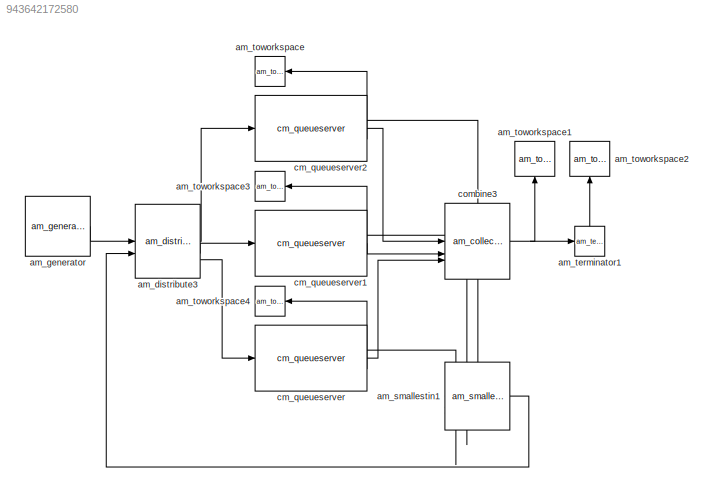
MODEL slx_943642172580
KIND model
CONFIG AbsTol = auto
CONFIG EnableMultiTasking = off
CONFIG FixedStep = auto
CONFIG MaxStep = auto
CONFIG MinStep = auto
CONFIG RelTol = 1e-3
CONFIG SampleTimeConstraint = Unconstrained
CONFIG SolverName = VariableStepAuto
CONFIG StartTime = 0.0
CONFIG StopTime = 10.0
BLOCK [Reference] am_distribute3  REF=StdLib/am_distribute3
  SourceBlock = StdLib/am_distribute3
  SourceProductName = Routing
  SourceType = Distribute3
BLOCK [Reference] am_generator  REF=StdLib/am_generator
  SourceBlock = StdLib/am_generator
  SourceProductName = Sources
  SourceType = Generator
BLOCK [Reference] am_smallestin1  REF=StdLib/am_smallestin3
  SourceBlock = StdLib/am_smallestin3
  SourceProductName = Routing
  SourceType = Smallestin3
BLOCK [Reference] am_terminator1  REF=StdLib/am_terminator
  SourceBlock = StdLib/am_terminator
  SourceType = Terminator
BLOCK [Reference] am_toworkspace  REF=StdLib/am_toworkspace
  NameLocation = top
  SourceBlock = StdLib/am_toworkspace
  SourceType = ToWorkspace
BLOCK [Reference] am_toworkspace1  REF=StdLib/am_toworkspace
  NameLocation = right
  SourceBlock = StdLib/am_toworkspace
  SourceType = ToWorkspace
BLOCK [Reference] am_toworkspace2  REF=StdLib/am_toworkspace
  NameLocation = right
  SourceBlock = StdLib/am_toworkspace
  SourceType = ToWorkspace
BLOCK [Reference] am_toworkspace3  REF=StdLib/am_toworkspace
  NameLocation = top
  SourceBlock = StdLib/am_toworkspace
  SourceType = ToWorkspace
BLOCK [Reference] am_toworkspace4  REF=StdLib/am_toworkspace
  NameLocation = top
  SourceBlock = StdLib/am_toworkspace
  SourceType = ToWorkspace
BLOCK [Reference] cm_queueserver  REF=PaperLib/cm_queueserver
  SourceBlock = PaperLib/cm_queueserver
BLOCK [Reference] cm_queueserver1  REF=PaperLib/cm_queueserver
  SourceBlock = PaperLib/cm_queueserver
BLOCK [Reference] cm_queueserver2  REF=PaperLib/cm_queueserver
  SourceBlock = PaperLib/cm_queueserver
BLOCK [Reference] combine3  REF=StdLib/am_collect3
  SourceBlock = StdLib/am_collect3
  SourceProductName = Routing
  SourceType = Collect3
LINE am_distribute3:1 -> cm_queueserver2:1
LINE am_distribute3:2 -> cm_queueserver1:1
LINE am_distribute3:3 -> cm_queueserver:1
LINE am_generator:1 -> am_distribute3:1
LINE am_smallestin1:1 -> am_distribute3:2
LINE am_terminator1:1 -> am_toworkspace2:1
LINE cm_queueserver1:1 -> combine3:2
NET cm_queueserver1:2 -> am_smallestin1:2, am_toworkspace3:1
LINE cm_queueserver2:1 -> combine3:1
NET cm_queueserver2:2 -> am_smallestin1:1, am_toworkspace:1
LINE cm_queueserver:1 -> combine3:3
NET cm_queueserver:2 -> am_smallestin1:3, am_toworkspace4:1
NET combine3:1 -> am_terminator1:1, am_toworkspace1:1
note: NET lines group one-source signal fan-out (src -> all destinations, sorted); 1:1 wires keep LINE
